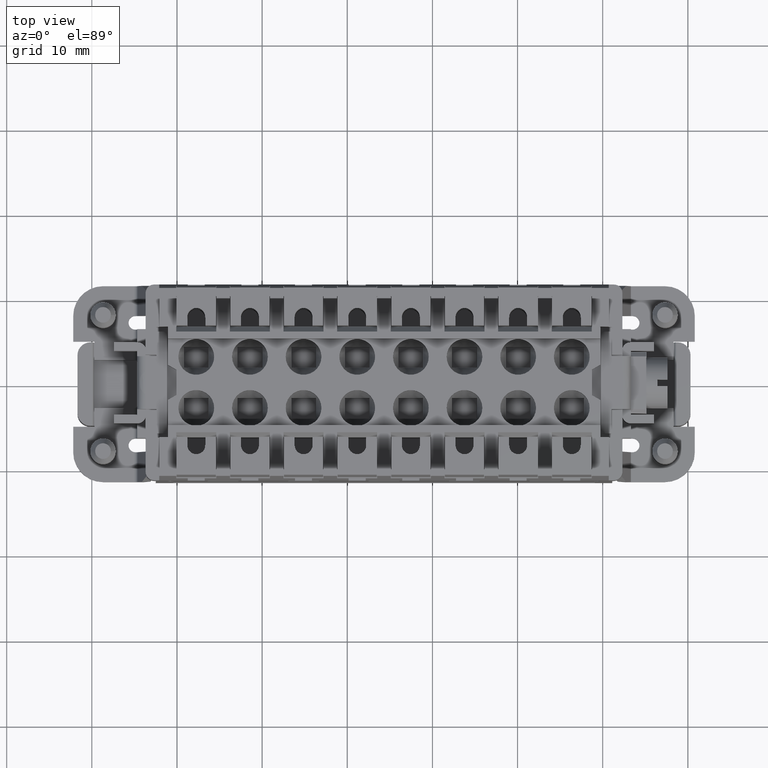
[diagram: clean part render]
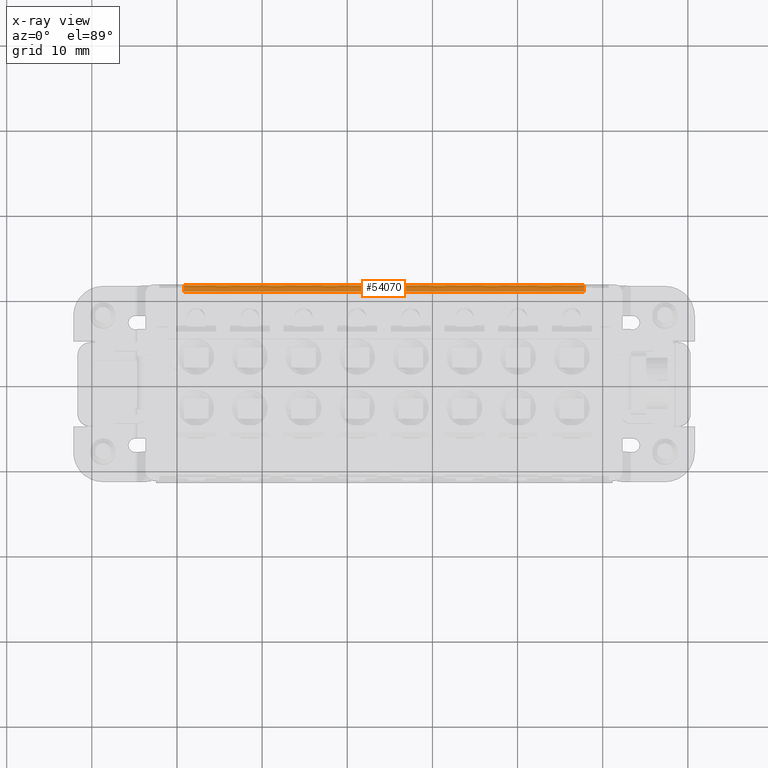
[diagram: x-ray — body ghosted, one internal face saturated and labeled with its STEP entity id]
A machine part, top view, then the same camera in x-ray: the body is ghosted and one INTERNAL B-rep face — a face not visible from any outside direction — is saturated and labeled: STEP entity #54070.
In plain terms, the highlighted planar face has unit normal (0, 0, 1).
Its self-contained STEP definition (entity closure, byte-faithful):
#53680=CARTESIAN_POINT('',(86.3206520000108,64.3836120000002,
3.9999999999492));
#53690=DIRECTION('',(1.84308323220867E-12,8.18443189171541E-29,1.));
#53700=DIRECTION('',(-1.,7.42817152014003E-32,1.84308323220867E-12));
#53710=AXIS2_PLACEMENT_3D('',#53680,#53690,#53700);
#53720=PLANE('',#53710);
#53730=CARTESIAN_POINT('',(112.745652000002,-1.22766478375731E-28,
3.9999999999005));
#53740=DIRECTION('',(-1.11022302462773E-16,1.,1.22791130278308E-28));
#53750=VECTOR('',#53740,1.);
#53760=LINE('',#53730,#53750);
#53770=CARTESIAN_POINT('',(112.745652000002,64.383612,3.9999999999005));
#53780=VERTEX_POINT('',#53770);
#53790=CARTESIAN_POINT('',(112.745652000002,65.0836120000009,
3.9999999999005));
#53800=VERTEX_POINT('',#53790);
#53810=EDGE_CURVE('',#53780,#53800,#53760,.T.);
#53820=ORIENTED_EDGE('',*,*,#53810,.F.);
#53830=CARTESIAN_POINT('',(0.,65.0836120000009,4.0000000001083));
#53840=DIRECTION('',(1.,0.,-1.84308323220867E-12));
#53850=VECTOR('',#53840,1.);
#53860=LINE('',#53830,#53850);
#53870=CARTESIAN_POINT('',(65.7456519998254,65.0836120000009,
3.99999999998712));
#53880=VERTEX_POINT('',#53870);
#53890=EDGE_CURVE('',#53880,#53800,#53860,.T.);
#53900=ORIENTED_EDGE('',*,*,#53890,.T.);
#53910=CARTESIAN_POINT('',(65.7456519998255,-1.22766478375731E-28,
3.99999999998712));
#53920=DIRECTION('',(-1.11022302462773E-16,1.,1.22791130278308E-28));
#53930=VECTOR('',#53920,1.);
#53940=LINE('',#53910,#53930);
#53950=CARTESIAN_POINT('',(65.7456519998254,64.383612,3.99999999998712))
;
#53960=VERTEX_POINT('',#53950);
#53970=EDGE_CURVE('',#53960,#53880,#53940,.T.);
#53980=ORIENTED_EDGE('',*,*,#53970,.T.);
#53990=CARTESIAN_POINT('',(0.,64.383612,4.0000000001083));
#54000=DIRECTION('',(1.,0.,-1.84308323220867E-12));
#54010=VECTOR('',#54000,1.);
#54020=LINE('',#53990,#54010);
#54030=EDGE_CURVE('',#53960,#53780,#54020,.T.);
#54040=ORIENTED_EDGE('',*,*,#54030,.F.);
#54050=EDGE_LOOP('',(#54040,#53980,#53900,#53820));
#54060=FACE_OUTER_BOUND('',#54050,.T.);
#54070=ADVANCED_FACE('',(#54060),#53720,.F.);